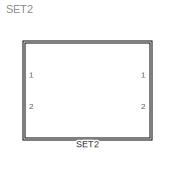
MODEL SET2
KIND model
CONFIG AbsTol = auto
CONFIG FixedStep = auto
CONFIG MaxStep = auto
CONFIG MinStep = auto
CONFIG RelTol = 1e-3
CONFIG Solver = ode45
CONFIG SolverMode = Auto
CONFIG StartTime = 0.0
CONFIG StopTime = 10.0
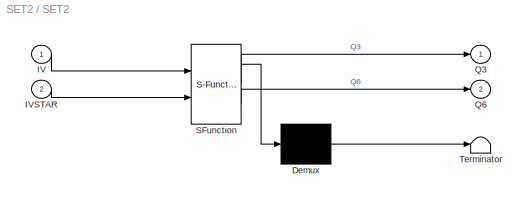
BLOCK [SubSystem] SET2
  MaskDescription = Stateflow diagram
  MaskDisplay = plot(sf('Private','sfblk','xIcon'),sf('Private','sfblk','yIcon'));text(0.5,0,sf('Private', 'sfblk', 'tIcon'),'HorizontalAl','Center','VerticalAl','Bottom');
  MaskIconFrame = off
  MaskIconOpaque = off
  MaskIconRotate = none
  MaskIconUnits = autoscale
  MaskSelfModifiable = on
  MaskType = Stateflow
  Ports = [2, 2]
  TreatAsAtomicUnit = off
BLOCK [Demux] SET2/ Demux 
  Outputs = 1
  Ports = [1, 1]
BLOCK [S-Function] SET2/ SFunction 
  FunctionName = sf_sfun
  PortCounts = [2 3]
  Ports = [2, 3]
  Tag = Stateflow S-Function SET2 1
BLOCK [Terminator] SET2/ Terminator 
BLOCK [Inport] SET2/IV
  PortDimensions = 1
BLOCK [Inport] SET2/IVSTAR
  Port = 2
  PortDimensions = 1
BLOCK [Outport] SET2/Q3
BLOCK [Outport] SET2/Q6
  Port = 2
LINE SET2/ Demux :1 -> SET2/ Terminator :1
LINE SET2/ SFunction :1 -> SET2/ Demux :1
LINE SET2/ SFunction :2 -> SET2/Q3:1
LINE SET2/ SFunction :3 -> SET2/Q6:1
LINE SET2/IV:1 -> SET2/ SFunction :1
LINE SET2/IVSTAR:1 -> SET2/ SFunction :2
CHART SET2 states=3 transitions=4
  STATE_LABEL 'B/'
  STATE_LABEL 'B1/\\nduring:Q3=1;Q6=0;'
  STATE_LABEL 'B2/\\nduring:Q6=1;Q3=0;'
